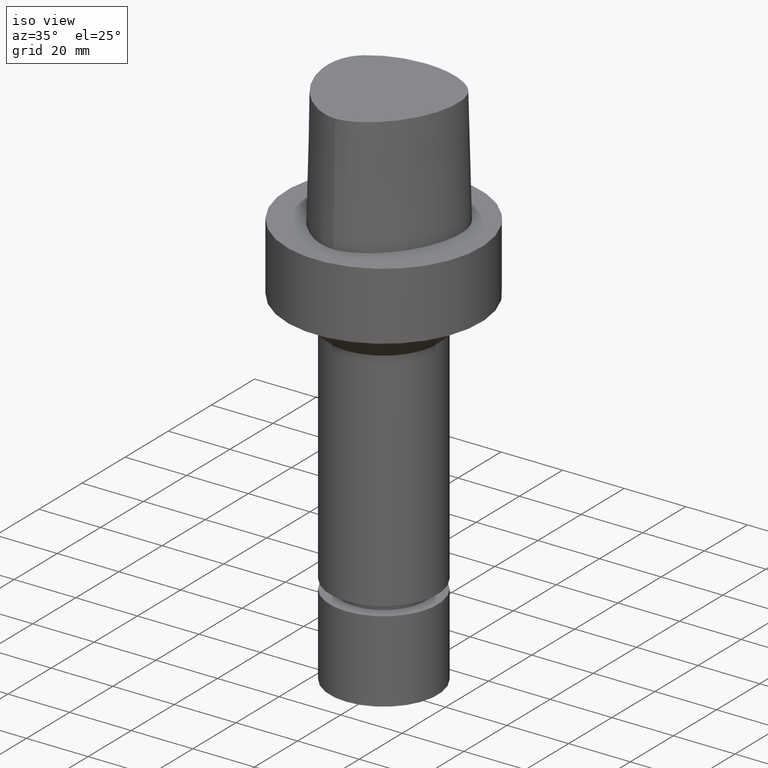
[diagram: clean part render]
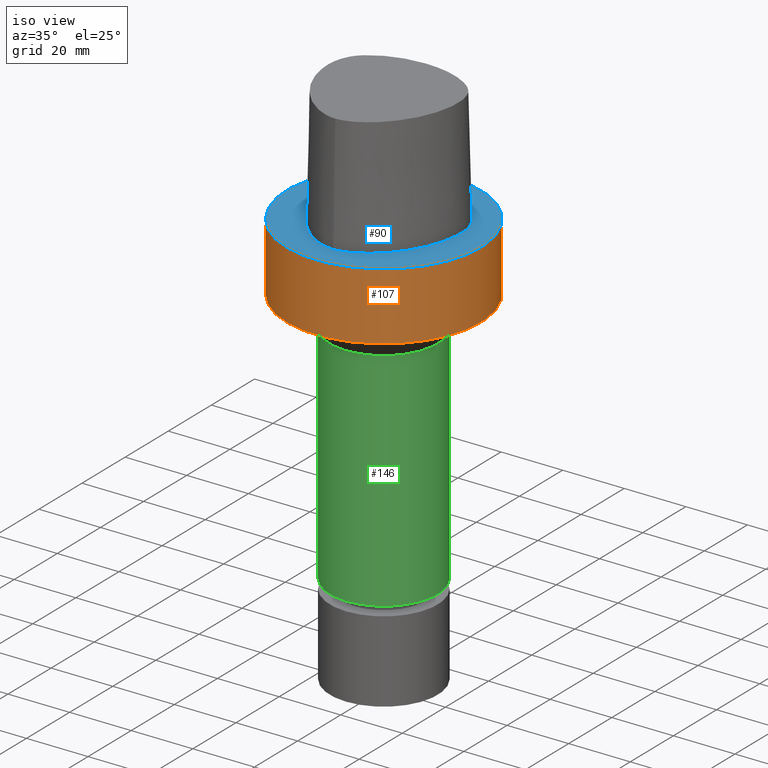
[diagram: same view with three faces highlighted in distinct colors, each labeled with its STEP entity id]
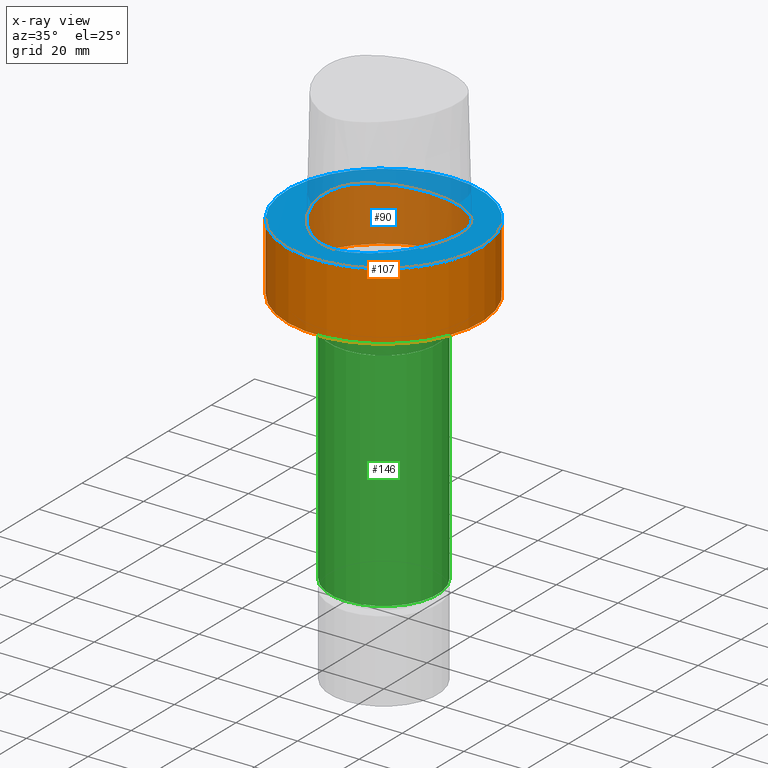
[diagram: x-ray of the same camera — body ghosted, the three highlighted faces saturated]
A machine part, iso view with three faces highlighted in distinct colors.
The next image is the same camera in x-ray (body ghosted, the three faces saturated) — at least one of them is partly hidden behind the body in this view.
Their STEP definitions:

[orange] entity #107 — the highlighted cylindrical surface (bore or boss wall) has radius 31.5 mm, axis along (0, 0, -1).
#84=EDGE_CURVE('Unnamed[1]',#209,#209,#210,.T.);
#101=EDGE_CURVE('Unnamed[1]',#234,#234,#235,.T.);
#107=ADVANCED_FACE('Unnamed[1]',(#243,#244),#245,.T.);
#209=VERTEX_POINT('',#374);
#210=CIRCLE('',#375,31.5);
#234=VERTEX_POINT('',#421);
#235=CIRCLE('',#422,31.5);
#243=FACE_BOUND('',#432,.T.);
#244=FACE_BOUND('',#433,.T.);
#245=CYLINDRICAL_SURFACE('',#434,31.5);
#374=CARTESIAN_POINT('',(1.34711147906212E-015,31.5,-22.0000000000006));
#375=AXIS2_PLACEMENT_3D('',#750,#751,#752);
#421=CARTESIAN_POINT('',(-3.88267476788467E-031,31.5,3.85763741731416E-015));
#422=AXIS2_PLACEMENT_3D('',#778,#779,#780);
#432=EDGE_LOOP('',(#788));
#433=EDGE_LOOP('',(#789));
#434=AXIS2_PLACEMENT_3D('',#790,#791,#792);
#750=CARTESIAN_POINT('',(1.34711147906212E-015,2.69422295812425E-015,-22.0000000000006));
#751=DIRECTION('',(6.12323399573677E-017,1.22464679914735E-016,-1.0));
#752=DIRECTION('',(-1.23259516440783E-032,1.0,1.22464679914735E-016));
#778=CARTESIAN_POINT('',(0.0,0.0,0.0));
#779=DIRECTION('',(6.12323399573677E-017,1.22464679914735E-016,-1.0));
#780=DIRECTION('',(-1.23259516440783E-032,1.0,1.22464679914735E-016));
#788=ORIENTED_EDGE('',*,*,#84,.F.);
#789=ORIENTED_EDGE('',*,*,#101,.T.);
#790=CARTESIAN_POINT('',(6.73555739531062E-016,1.34711147906212E-015,-11.0000000000003));
#791=DIRECTION('',(6.12323399573677E-017,1.22464679914735E-016,-1.0));
#792=DIRECTION('',(-1.23259516440783E-032,1.0,1.22464679914735E-016));

[blue] entity #90 — the highlighted planar face has unit normal (-0, -0, 1).
#90=ADVANCED_FACE('Unnamed[1]',(#217,#218),#219,.T.);
#94=EDGE_CURVE('Unnamed[1]',#206,#193,#224,.T.);
#101=EDGE_CURVE('Unnamed[1]',#234,#234,#235,.T.);
#123=EDGE_CURVE('Unnamed[1]',#269,#206,#270,.T.);
#161=EDGE_CURVE('Unnamed[1]',#193,#269,#324,.T.);
#193=VERTEX_POINT('',#351);
#206=VERTEX_POINT('',#369);
#217=FACE_BOUND('',#384,.T.);
#218=FACE_OUTER_BOUND('',#385,.T.);
#219=PLANE('',#386);
#224=CIRCLE('',#408,0.949936168436318);
#234=VERTEX_POINT('',#421);
#235=CIRCLE('',#422,31.5);
#269=VERTEX_POINT('',#531);
#270=B_SPLINE_CURVE_WITH_KNOTS('',3,(#532,#533,#534,#535,#536,#537,#538,#539,#540,#541,#542,#543,#544,#545,#546,#547,#548,#549),.UNSPECIFIED.,.F.,.F.,(4,1,1,1,1,1,1,1,1,2,1,1,1,1,4),(-6.6151339308743,-6.20168806019465,-5.78824218951501,-5.37479631883537,-4.96135044815572,-4.13445870679644,-3.30756696543715,-2.89412109475751,-2.48067522407786,-2.06722935339822,-1.65378348271857,-1.24033761203893,-0.826891741359287,-0.413445870679644,0.0),.UNSPECIFIED.);
#324=B_SPLINE_CURVE_WITH_KNOTS('',3,(#703,#704,#705,#706,#707,#708,#709,#710,#711,#712,#713,#714,#715,#716,#717,#718,#719),.UNSPECIFIED.,.F.,.F.,(4,1,1,1,1,1,1,1,1,1,1,1,1,1,4),(-13.2302678617486,-12.816821991069,-12.4033761203893,-11.9899302497097,-11.57648437903,-11.1630385083504,-10.9563155730106,-10.7495926376707,-10.3361467669911,-9.92270089631145,-9.09580915495216,-8.26891741359287,-7.44202567223358,-7.02857980155394,-6.6151339308743),.UNSPECIFIED.);
#351=CARTESIAN_POINT('',(0.044682985379347,20.6765087343109,1.61778115328528E-031));
#369=CARTESIAN_POINT('',(-0.045171994691285,20.6766009553285,1.6755590516169E-031));
#384=EDGE_LOOP('',(#759,#760,#761));
#385=EDGE_LOOP('',(#762));
#386=AXIS2_PLACEMENT_3D('',#763,#764,#765);
#408=AXIS2_PLACEMENT_3D('',#766,#767,#768);
#421=CARTESIAN_POINT('',(-3.88267476788467E-031,31.5,3.85763741731416E-015));
#422=AXIS2_PLACEMENT_3D('',#778,#779,#780);
#531=CARTESIAN_POINT('',(0.04359356758149,-23.4691235068931,7.78075697532443E-032));
#532=CARTESIAN_POINT('',(0.04359356758149,-23.4691235068931,7.78075697532443E-032));
#533=CARTESIAN_POINT('',(-1.4714994713963,-23.4767895315797,2.46519032881566E-032));
#534=CARTESIAN_POINT('',(-4.43923476371401,-22.821149804767,-4.93038065763132E-032));
#535=CARTESIAN_POINT('',(-8.35043230079961,-20.8000751253325,-9.86076131526265E-032));
#536=CARTESIAN_POINT('',(-11.744900222602,-18.1556117874078,-1.97215226305253E-031));
#537=CARTESIAN_POINT('',(-15.6989602501314,-14.0406306929147,-1.97215226305253E-031));
#538=CARTESIAN_POINT('',(-19.5352875070682,-8.00624990770787,1.97215226305253E-031));
#539=CARTESIAN_POINT('',(-21.7205626190491,-1.16081708945282,0.0));
#540=CARTESIAN_POINT('',(-22.2486616783342,4.54965558738736,0.0));
#541=CARTESIAN_POINT('',(-21.6646421256468,9.00229539124618,0.0));
#542=CARTESIAN_POINT('',(-20.3945635471922,11.7780544971003,0.0));
#543=CARTESIAN_POINT('',(-18.5925528034471,14.1980602922581,0.0));
#544=CARTESIAN_POINT('',(-16.3226584122258,16.1777748720707,0.0));
#545=CARTESIAN_POINT('',(-12.5076407874579,18.2524201541303,9.86076131526265E-032));
#546=CARTESIAN_POINT('',(-8.46776192107786,19.679114377952,9.86076131526265E-032));
#547=CARTESIAN_POINT('',(-4.23043497193604,20.487781597334,1.97215226305253E-031));
#548=CARTESIAN_POINT('',(-1.42313094248379,20.6127745766442,1.10933564796705E-031));
#549=CARTESIAN_POINT('',(-0.045171994691285,20.6766009553285,1.6755590516169E-031));
#703=CARTESIAN_POINT('',(0.044682985379347,20.6765087343109,1.61778115328528E-031));
#704=CARTESIAN_POINT('',(1.42379272427753,20.6097915814392,8.62816615085482E-032));
#705=CARTESIAN_POINT('',(4.2230955003445,20.4837538303966,1.4791141972894E-031));
#706=CARTESIAN_POINT('',(8.47220762821777,19.6890432607088,9.86076131526265E-032));
#707=CARTESIAN_POINT('',(12.5141247708253,18.2434968480404,0.0));
#708=CARTESIAN_POINT('',(16.3038624872874,16.1734192182143,1.97215226305253E-031));
#709=CARTESIAN_POINT('',(19.1446913988473,13.7036723639434,-1.97215226305253E-031));
#710=CARTESIAN_POINT('',(20.7319894342149,11.1014620996188,0.0));
#711=CARTESIAN_POINT('',(21.7831756505763,8.28099229708081,-1.97215226305253E-031));
#712=CARTESIAN_POINT('',(22.2258240701438,4.60865440596506,0.0));
#713=CARTESIAN_POINT('',(21.7436130080666,-1.11326526354485,0.0));
#714=CARTESIAN_POINT('',(19.5519487660502,-7.95432366164584,0.0));
#715=CARTESIAN_POINT('',(14.9574167123838,-15.2089785567293,0.0));
#716=CARTESIAN_POINT('',(9.66840283021945,-20.0827414369705,-9.86076131526265E-032));
#717=CARTESIAN_POINT('',(4.51628650521788,-22.7946374572188,-9.86076131526265E-032));
#718=CARTESIAN_POINT('',(1.55867251738073,-23.4612972770043,-1.23259516440783E-032));
#719=CARTESIAN_POINT('',(0.04359356758149,-23.4691235068931,7.78075697532443E-032));
#759=ORIENTED_EDGE('',*,*,#161,.T.);
#760=ORIENTED_EDGE('',*,*,#123,.T.);
#761=ORIENTED_EDGE('',*,*,#94,.T.);
#762=ORIENTED_EDGE('',*,*,#101,.F.);
#763=CARTESIAN_POINT('',(-1.94133738394233E-031,15.75,1.92881870865708E-015));
#764=DIRECTION('',(-6.12323399573677E-017,-1.22464679914735E-016,1.0));
#765=DIRECTION('',(1.23259516440783E-032,-1.0,-1.22464679914735E-016));
#766=CARTESIAN_POINT('',(-0.001218547003662,19.7276821925089,1.97178046083078E-015));
#767=DIRECTION('',(6.12323399573677E-017,1.22464679914735E-016,-1.0));
#768=DIRECTION('',(-0.046269895968506,0.998928974816059,1.19500303158668E-016));
#778=CARTESIAN_POINT('',(0.0,0.0,0.0));
#779=DIRECTION('',(6.12323399573677E-017,1.22464679914735E-016,-1.0));
#780=DIRECTION('',(-1.23259516440783E-032,1.0,1.22464679914735E-016));

[green] entity #146 — the highlighted cylindrical surface (bore or boss wall) has radius 17.5 mm, axis along (0, 0, -1).
#96=EDGE_CURVE('Unnamed[1]',#226,#226,#227,.T.);
#118=EDGE_CURVE('Unnamed[1]',#261,#261,#262,.T.);
#146=ADVANCED_FACE('Unnamed[1]',(#301,#302),#303,.T.);
#226=VERTEX_POINT('',#411);
#227=CIRCLE('',#412,17.4999999999995);
#261=VERTEX_POINT('',#521);
#262=CIRCLE('',#522,17.4999999999999);
#301=FACE_BOUND('',#659,.T.);
#302=FACE_BOUND('',#660,.T.);
#303=CYLINDRICAL_SURFACE('',#661,17.4999999999997);
#411=CARTESIAN_POINT('',(6.46001186550228E-015,17.4999999999996,-105.5));
#412=AXIS2_PLACEMENT_3D('',#769,#770,#771);
#521=CARTESIAN_POINT('',(1.95943487863578E-015,17.4999999999999,-32.0000000000002));
#522=AXIS2_PLACEMENT_3D('',#810,#811,#812);
#659=EDGE_LOOP('',(#851));
#660=EDGE_LOOP('',(#852));
#661=AXIS2_PLACEMENT_3D('',#853,#854,#855);
#769=CARTESIAN_POINT('',(6.46001186550228E-015,1.29200237310045E-014,-105.5));
#770=DIRECTION('',(6.12323399573677E-017,1.22464679914735E-016,-1.0));
#771=DIRECTION('',(-1.23259516440783E-032,1.0,1.22464679914735E-016));
#810=CARTESIAN_POINT('',(1.95943487863578E-015,3.91886975727156E-015,-32.0000000000002));
#811=DIRECTION('',(6.12323399573677E-017,1.22464679914735E-016,-1.0));
#812=DIRECTION('',(-1.23259516440783E-032,1.0,1.22464679914735E-016));
#851=ORIENTED_EDGE('',*,*,#96,.F.);
#852=ORIENTED_EDGE('',*,*,#118,.T.);
#853=CARTESIAN_POINT('',(4.20972337206903E-015,8.41944674413806E-015,-68.75));
#854=DIRECTION('',(6.12323399573677E-017,1.22464679914735E-016,-1.0));
#855=DIRECTION('',(-1.23259516440783E-032,1.0,1.22464679914735E-016));